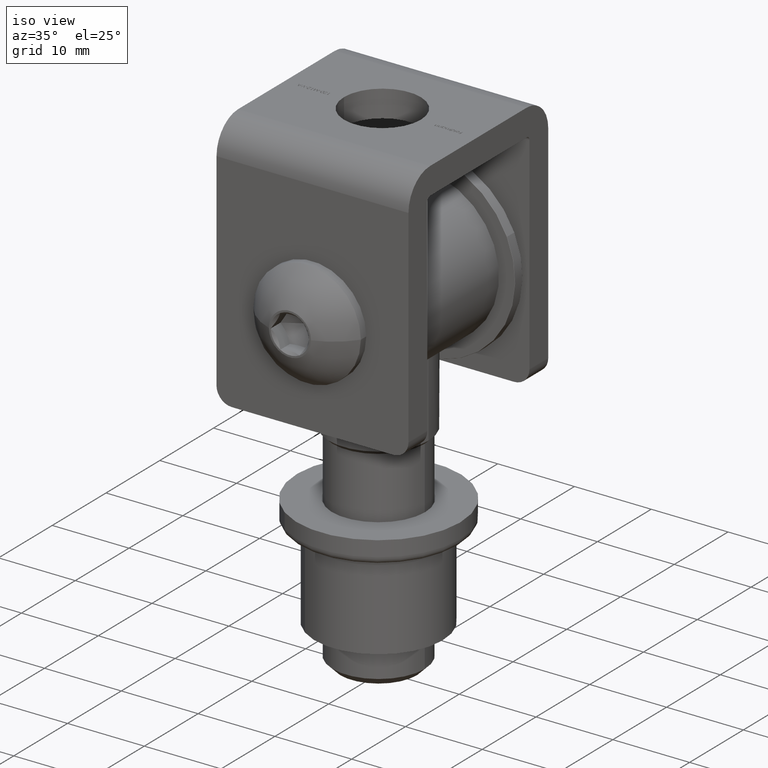
[diagram: clean part render]
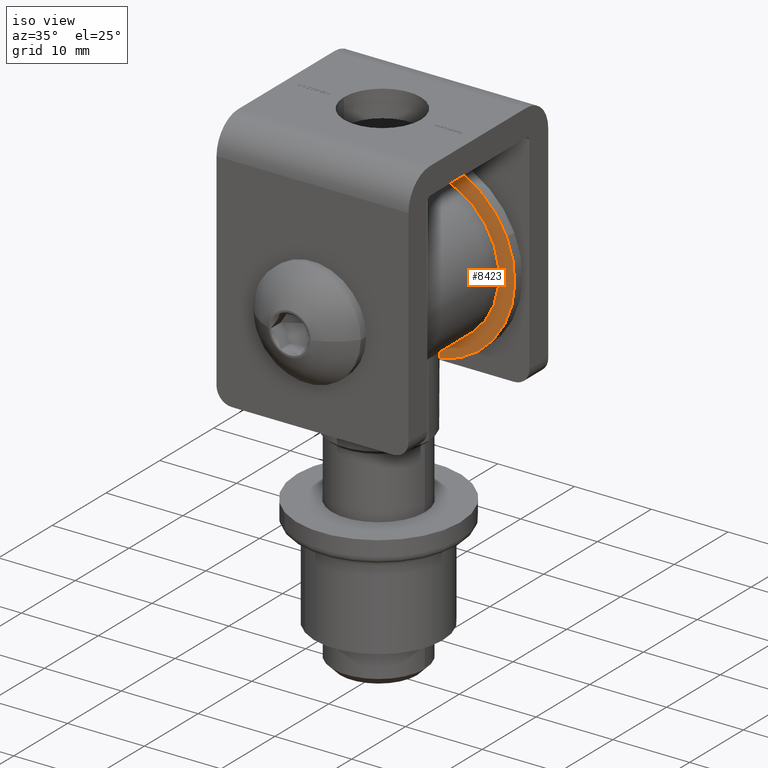
[diagram: same view with one face highlighted and labeled with its STEP entity id]
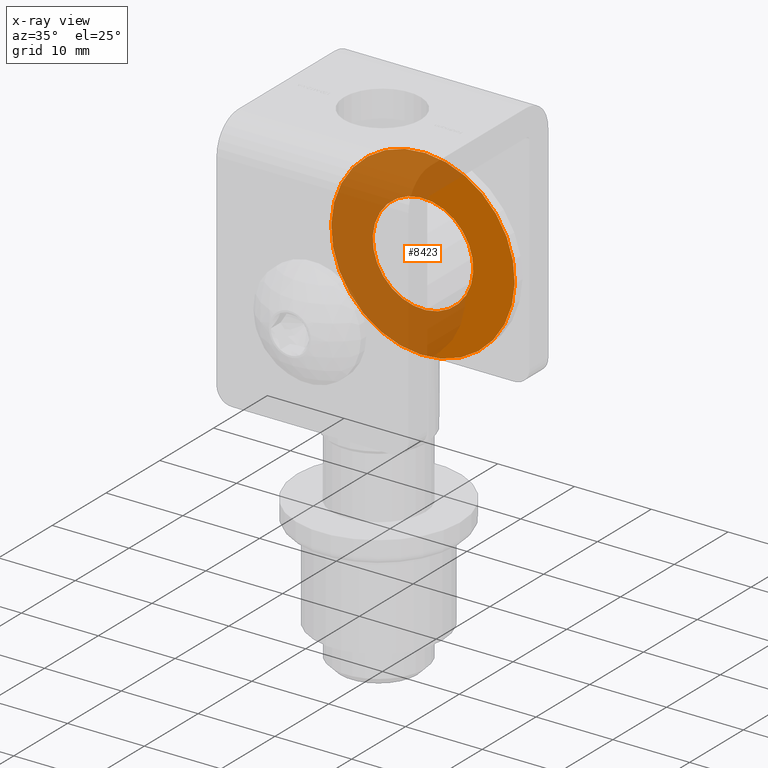
[diagram: x-ray of the same camera — body ghosted, the highlighted face saturated]
A machine part, iso view. The second image highlights one B-rep face of the part: STEP entity #8423.
The next image is the same camera in x-ray: the body ghosted, the highlighted face saturated — about 63% of this face is hidden behind the body in this view.
In plain terms, the highlighted planar face has unit normal (0, 1, 0).
Its self-contained STEP definition (entity closure, byte-faithful):
#110 = VERTEX_POINT ( 'NONE', #142 ) ;
#124 = EDGE_LOOP ( 'NONE', ( #14436, #1536 ) ) ;
#142 = CARTESIAN_POINT ( 'NONE',  ( 3.635980405647387100E-016, -0.6999999999999988500, 6.550000000000082400 ) ) ;
#513 = EDGE_CURVE ( 'NONE', #8411, #9121, #8223, .T. ) ;
#628 = EDGE_CURVE ( 'NONE', #110, #8222, #9970, .T. ) ;
#634 = DIRECTION ( 'NONE',  ( 5.551115123125711800E-017, 0.0000000000000000000, 1.000000000000000000 ) ) ;
#1378 = DIRECTION ( 'NONE',  ( 5.551115123125711200E-017, 0.0000000000000000000, 1.000000000000000000 ) ) ;
#1536 = ORIENTED_EDGE ( 'NONE', *, *, #513, .T. ) ;
#1746 = DIRECTION ( 'NONE',  ( 0.0000000000000000000, 1.000000000000000000, 0.0000000000000000000 ) ) ;
#2706 = EDGE_LOOP ( 'NONE', ( #3485, #4487 ) ) ;
#3452 = EDGE_CURVE ( 'NONE', #9121, #8411, #11902, .T. ) ;
#3485 = ORIENTED_EDGE ( 'NONE', *, *, #628, .T. ) ;
#3691 = AXIS2_PLACEMENT_3D ( 'NONE', #9582, #1746, #634 ) ;
#4487 = ORIENTED_EDGE ( 'NONE', *, *, #7924, .T. ) ;
#4617 = CARTESIAN_POINT ( 'NONE',  ( 8.017685059846517300E-016, -0.6999999999999992900, -11.95000000000000300 ) ) ;
#4821 = DIRECTION ( 'NONE',  ( -0.0000000000000000000, -1.000000000000000000, -0.0000000000000000000 ) ) ;
#5074 = AXIS2_PLACEMENT_3D ( 'NONE', #10766, #14394, #8538 ) ;
#5567 = CARTESIAN_POINT ( 'NONE',  ( 0.0000000000000000000, -0.6999999999999992900, 0.0000000000000000000 ) ) ;
#5654 = DIRECTION ( 'NONE',  ( 5.551115123125711200E-017, 0.0000000000000000000, 1.000000000000000000 ) ) ;
#6025 = CARTESIAN_POINT ( 'NONE',  ( 6.633582572135311900E-016, -0.6999999999999992900, 11.95000000000015700 ) ) ;
#6356 = FACE_OUTER_BOUND ( 'NONE', #124, .T. ) ;
#6869 = CIRCLE ( 'NONE', #5074, 6.550000000000082400 ) ;
#7035 = FACE_BOUND ( 'NONE', #2706, .T. ) ;
#7924 = EDGE_CURVE ( 'NONE', #8222, #110, #6869, .T. ) ;
#8010 = AXIS2_PLACEMENT_3D ( 'NONE', #10345, #4821, #10289 ) ;
#8222 = VERTEX_POINT ( 'NONE', #11662 ) ;
#8223 = CIRCLE ( 'NONE', #8010, 11.95000000000015700 ) ;
#8411 = VERTEX_POINT ( 'NONE', #4617 ) ;
#8423 = ADVANCED_FACE ( 'NONE', ( #6356, #7035 ), #11375, .F. ) ;
#8538 = DIRECTION ( 'NONE',  ( 5.551115123125711800E-017, 0.0000000000000000000, 1.000000000000000000 ) ) ;
#8886 = AXIS2_PLACEMENT_3D ( 'NONE', #5567, #12294, #5654 ) ;
#9121 = VERTEX_POINT ( 'NONE', #6025 ) ;
#9582 = CARTESIAN_POINT ( 'NONE',  ( 0.0000000000000000000, -0.6999999999999992900, 0.0000000000000000000 ) ) ;
#9970 = CIRCLE ( 'NONE', #3691, 6.550000000000082400 ) ;
#10289 = DIRECTION ( 'NONE',  ( 5.551115123125711200E-017, 0.0000000000000000000, 1.000000000000000000 ) ) ;
#10345 = CARTESIAN_POINT ( 'NONE',  ( 0.0000000000000000000, -0.6999999999999992900, 0.0000000000000000000 ) ) ;
#10766 = CARTESIAN_POINT ( 'NONE',  ( 0.0000000000000000000, -0.6999999999999992900, 0.0000000000000000000 ) ) ;
#11236 = CARTESIAN_POINT ( 'NONE',  ( 0.0000000000000000000, -0.6999999999999992900, 0.0000000000000000000 ) ) ;
#11375 = PLANE ( 'NONE',  #11841 ) ;
#11662 = CARTESIAN_POINT ( 'NONE',  ( 4.385456128767878200E-016, -0.6999999999999988500, -6.550000000000082400 ) ) ;
#11841 = AXIS2_PLACEMENT_3D ( 'NONE', #11236, #13582, #1378 ) ;
#11902 = CIRCLE ( 'NONE', #8886, 11.95000000000015700 ) ;
#12294 = DIRECTION ( 'NONE',  ( -0.0000000000000000000, -1.000000000000000000, -0.0000000000000000000 ) ) ;
#13582 = DIRECTION ( 'NONE',  ( -0.0000000000000000000, 1.000000000000000000, 0.0000000000000000000 ) ) ;
#14394 = DIRECTION ( 'NONE',  ( 0.0000000000000000000, 1.000000000000000000, 0.0000000000000000000 ) ) ;
#14436 = ORIENTED_EDGE ( 'NONE', *, *, #3452, .T. ) ;